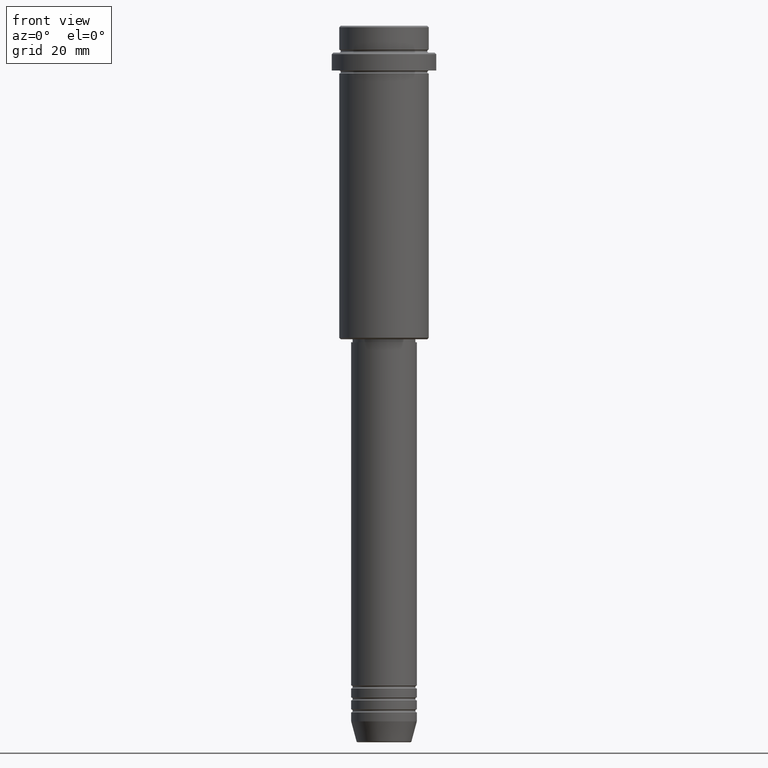
[diagram: clean part render]
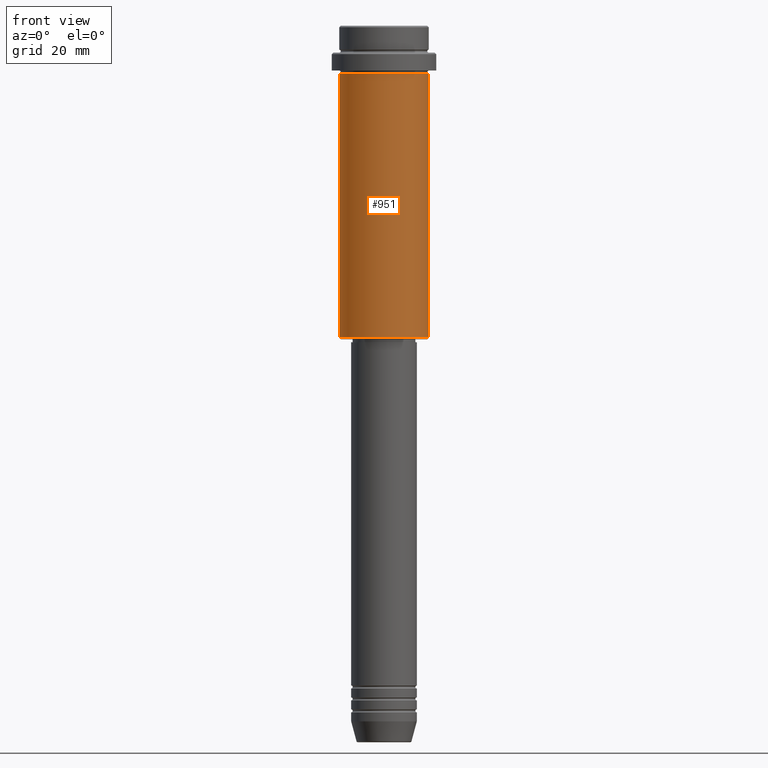
[diagram: same view with one face highlighted and labeled with its STEP entity id]
A machine part, front view. The second image highlights one B-rep face of the part: STEP entity #951.
In plain terms, the highlighted cylindrical surface (partial cylindrical patch) has radius 15 mm, axis along (-0, -0, 1).
Its self-contained STEP definition (entity closure, byte-faithful):
#32 = CARTESIAN_POINT ( 'NONE',  ( 15.00000000000000178, 0.000000000000000000, -16.00000000000000000 ) ) ;
#36 = CARTESIAN_POINT ( 'NONE',  ( -15.00000000000000000, 1.836970198721029589E-15, -104.4999999999999147 ) ) ;
#63 = DIRECTION ( 'NONE',  ( 1.000000000000000000, 0.000000000000000000, 0.000000000000000000 ) ) ;
#145 = AXIS2_PLACEMENT_3D ( 'NONE', #972, #230, #984 ) ;
#194 = ORIENTED_EDGE ( 'NONE', *, *, #1153, .F. ) ;
#230 = DIRECTION ( 'NONE',  ( -0.000000000000000000, -0.000000000000000000, 1.000000000000000000 ) ) ;
#277 = VERTEX_POINT ( 'NONE', #453 ) ;
#290 = AXIS2_PLACEMENT_3D ( 'NONE', #861, #317, #428 ) ;
#303 = LINE ( 'NONE', #735, #1278 ) ;
#317 = DIRECTION ( 'NONE',  ( -0.000000000000000000, -0.000000000000000000, 1.000000000000000000 ) ) ;
#409 = DIRECTION ( 'NONE',  ( -0.000000000000000000, -0.000000000000000000, 1.000000000000000000 ) ) ;
#428 = DIRECTION ( 'NONE',  ( -1.000000000000000000, 0.000000000000000000, 0.000000000000000000 ) ) ;
#453 = CARTESIAN_POINT ( 'NONE',  ( 15.00000000000000000, 0.000000000000000000, -104.4999999999999147 ) ) ;
#607 = VERTEX_POINT ( 'NONE', #959 ) ;
#611 = EDGE_CURVE ( 'NONE', #1284, #607, #838, .T. ) ;
#705 = ORIENTED_EDGE ( 'NONE', *, *, #1133, .T. ) ;
#735 = CARTESIAN_POINT ( 'NONE',  ( 15.00000000000000000, 0.000000000000000000, 0.000000000000000000 ) ) ;
#817 = CYLINDRICAL_SURFACE ( 'NONE', #1321, 15.00000000000000000 ) ;
#825 = CARTESIAN_POINT ( 'NONE',  ( -15.00000000000000000, 1.836970198721029589E-15, 0.000000000000000000 ) ) ;
#838 = LINE ( 'NONE', #825, #1259 ) ;
#861 = CARTESIAN_POINT ( 'NONE',  ( 0.000000000000000000, 0.000000000000000000, -104.4999999999999147 ) ) ;
#877 = VERTEX_POINT ( 'NONE', #32 ) ;
#883 = EDGE_LOOP ( 'NONE', ( #1245, #705, #1182, #194 ) ) ;
#934 = DIRECTION ( 'NONE',  ( -0.000000000000000000, -0.000000000000000000, 1.000000000000000000 ) ) ;
#951 = ADVANCED_FACE ( 'NONE', ( #1045 ), #817, .T. ) ;
#959 = CARTESIAN_POINT ( 'NONE',  ( -15.00000000000000355, 1.836970198721029983E-15, -16.00000000000000000 ) ) ;
#972 = CARTESIAN_POINT ( 'NONE',  ( 0.000000000000000000, 0.000000000000000000, -16.00000000000000000 ) ) ;
#984 = DIRECTION ( 'NONE',  ( 1.000000000000000000, 0.000000000000000000, 0.000000000000000000 ) ) ;
#1039 = DIRECTION ( 'NONE',  ( -0.000000000000000000, -0.000000000000000000, 1.000000000000000000 ) ) ;
#1045 = FACE_OUTER_BOUND ( 'NONE', #883, .T. ) ;
#1050 = CIRCLE ( 'NONE', #290, 15.00000000000000000 ) ;
#1091 = CIRCLE ( 'NONE', #145, 15.00000000000000178 ) ;
#1133 = EDGE_CURVE ( 'NONE', #1284, #277, #1050, .T. ) ;
#1141 = CARTESIAN_POINT ( 'NONE',  ( 0.000000000000000000, 0.000000000000000000, 0.000000000000000000 ) ) ;
#1153 = EDGE_CURVE ( 'NONE', #607, #877, #1091, .T. ) ;
#1182 = ORIENTED_EDGE ( 'NONE', *, *, #1401, .T. ) ;
#1245 = ORIENTED_EDGE ( 'NONE', *, *, #611, .F. ) ;
#1259 = VECTOR ( 'NONE', #934, 1000.000000000000000 ) ;
#1278 = VECTOR ( 'NONE', #409, 1000.000000000000000 ) ;
#1284 = VERTEX_POINT ( 'NONE', #36 ) ;
#1321 = AXIS2_PLACEMENT_3D ( 'NONE', #1141, #1039, #63 ) ;
#1401 = EDGE_CURVE ( 'NONE', #277, #877, #303, .T. ) ;